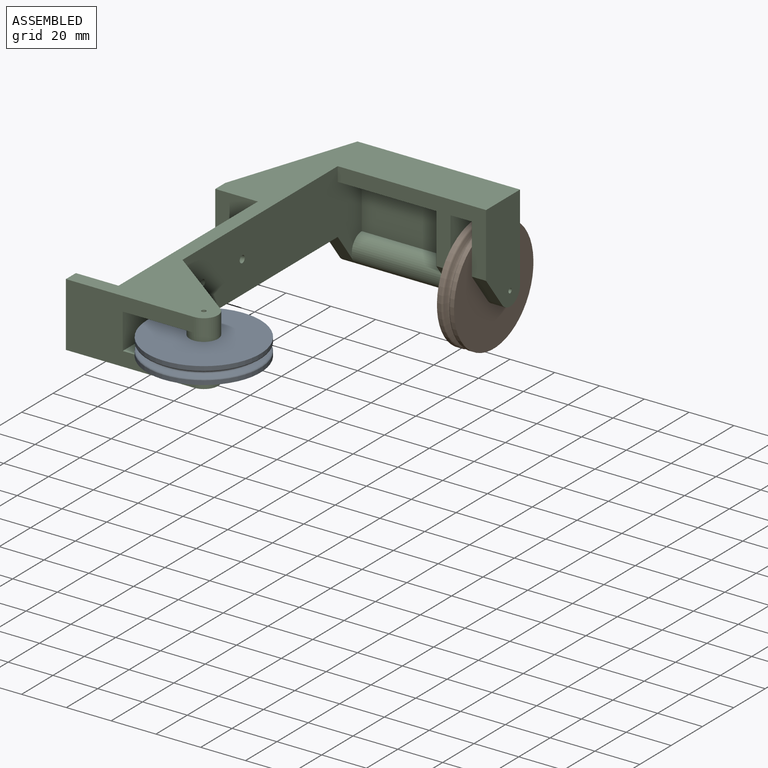
[diagram: assembled view]
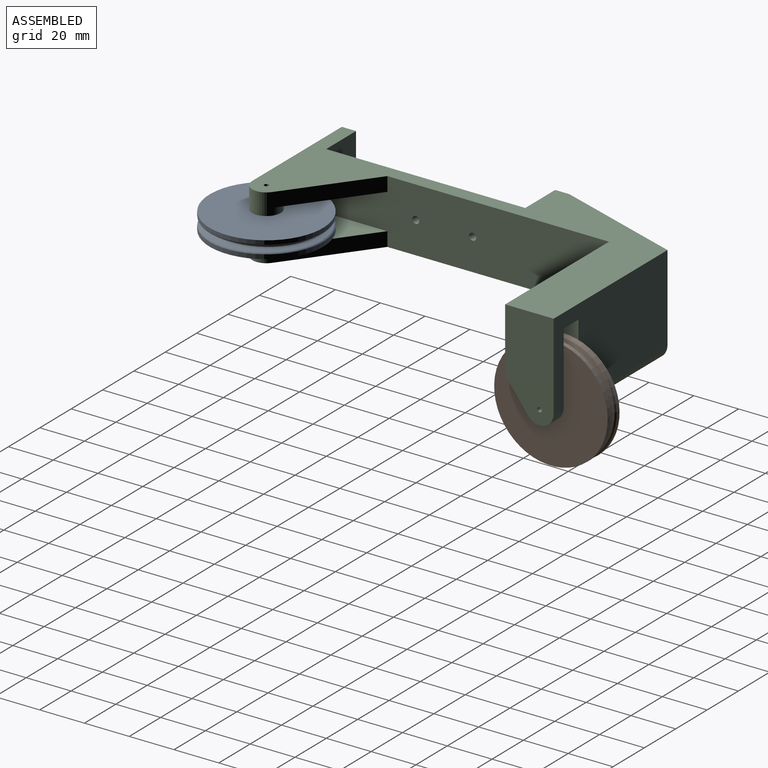
[diagram: assembled view, second angle]
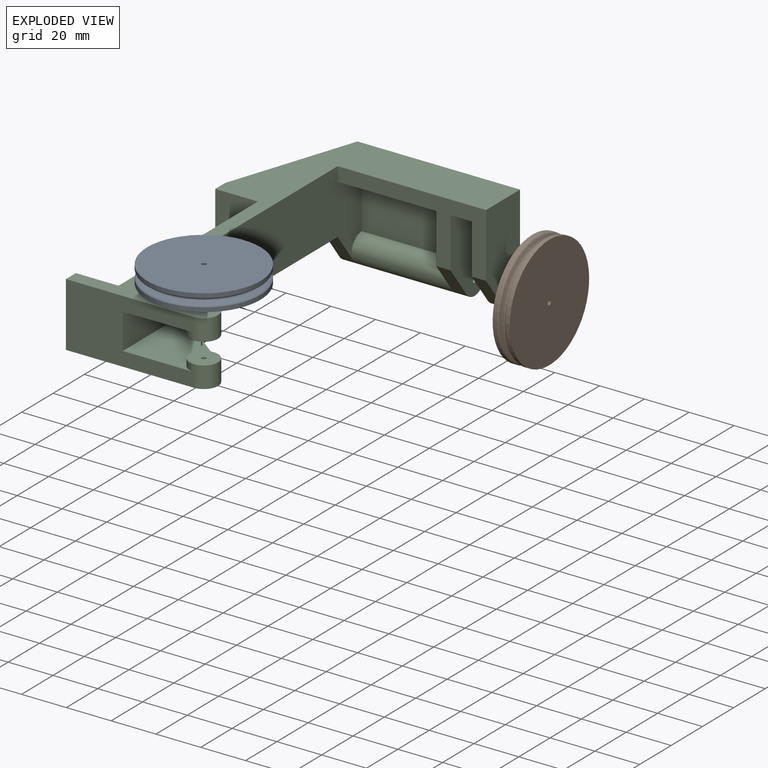
[diagram: exploded view]
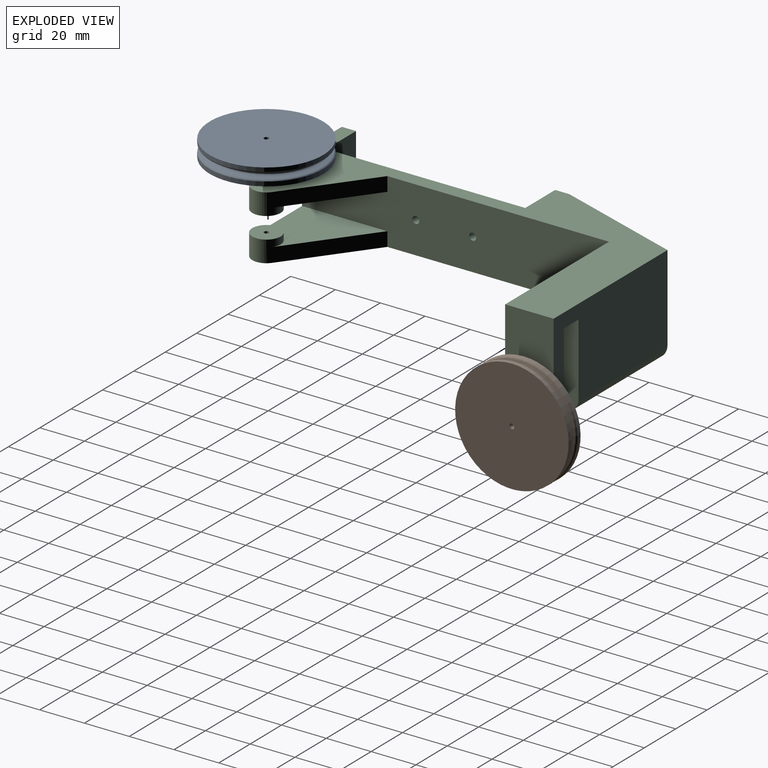
[diagram: exploded view, second angle]
ASSEMBLY  parts=3 mates=3
PART A: 6 faces, bbox 50.7x50.7x7.6 mm
  f0: cylinder r=25.33mm len=50.67mm, axis (0,0,-1), area 286.8mm2, adj f3,f5
  f1: cylinder r=25.33mm len=50.67mm, axis (0,0,-1), area 308.3mm2, adj f4,f5
  f2: cylinder r=1.08mm len=7.62mm, axis (0,0,-1), area 51.7mm2, adj f3,f4
  f3: plane 50.67x50.67mm, normal (0,0,1), area 2012.8mm2, adj f0,f2
  f4: plane 50.67x50.67mm, normal (0,0,-1), area 2012.8mm2, adj f1,f2
  f5: revolved ~50.67x50.67mm, area 2213.4mm2, adj f0,f1
PART B: same geometry as A
PART C: 44 faces, bbox 91.6x158.8x44.8 mm
  f0: plane 57.15x38.42mm, normal (-1,0,0), area 1287.3mm2, adj f1,f3,f25,f26,f39,f40,f41
  f1: plane 19.05x15.88mm, normal (0,1,0), area 302.4mm2, adj f0,f12,f39,f41
  f2: cylinder r=1.02mm len=6.35mm, axis (1,0,0), area 40.5mm2, adj f27,f37
  f3: cylinder r=6.35mm len=56.71mm, axis (1,0,0), area 1518.3mm2, adj f0,f4,f6,f25,f26,f27,f35,f36
  f4: plane 35.88x15.32mm, normal (-1,0,0), area 425.4mm2, adj f3,f5,f29,f35,f36
  f5: plane 44.01x15.32mm, normal (0,0,-1), area 674.1mm2, adj f4,f6,f29,f36
  f6: plane 152.4x42.23mm, normal (1,0,0), area 3842.8mm2, adj f3,f5,f7,f11,f14,f15,f16,f19
  f7: plane 38.1x35.56mm, normal (0,0,-1), area 770.5mm2, adj f6,f11,f21,f22
  f8: plane 88.9x28.58mm, normal (-1,0,0), area 2524.5mm2, adj f9,f13,f14,f15,f42,f43
  f9: plane 28.58x19.05mm, normal (0,1,0), area 544.4mm2, adj f8,f10,f14,f15
  f10: plane 28.58x6.35mm, normal (-1,0,0), area 181.5mm2, adj f9,f11,f14,f15
  f11: plane 57.15x28.58mm, normal (0,-1,0), area 1129mm2, adj f6,f7,f10,f14,f15,f17,f19,f21
  f12: plane 28.58x6.35mm, normal (-1,0,0), area 181.5mm2, adj f1,f13,f14,f15,f38,f40
  f13: plane 28.58x19.05mm, normal (0,-1,0), area 544.4mm2, adj f8,f12,f14,f15
  f14: plane 137.08x63.5mm, normal (0,0,-1), area 2344.2mm2, adj f6,f8,f9,f10,f11,f12,f13,f16
  f15: plane 158.75x91.63mm, normal (0,0,1), area 4123.4mm2, adj f6,f8,f9,f10,f11,f12,f13,f21
  f16: plane 35.56x26.67mm, normal (0.6,0.8,0), area 282.3mm2, adj f6,f14,f17,f19
  f17: cylinder r=6.35mm len=12.7mm, axis (0,0,-1), area 227.4mm2, adj f11,f14,f16,f19,f20
  f18: cylinder r=1.02mm len=9.53mm, axis (0,0,-1), area 60.8mm2, adj f14,f20
  f19: plane 38.1x35.56mm, normal (0,0,1), area 770.5mm2, adj f6,f11,f16,f17
  f20: plane 12.7x12.7mm, normal (0,0,1), area 123.4mm2, adj f17,f18
  f21: cylinder r=6.35mm len=12.7mm, axis (0,0,1), area 227.4mm2, adj f7,f11,f15,f22,f24
  f22: plane 35.56x26.67mm, normal (0.6,0.8,0), area 282.3mm2, adj f6,f7,f15,f21
  f23: cylinder r=1.02mm len=9.53mm, axis (0,0,1), area 60.8mm2, adj f15,f24
  f24: plane 12.7x12.7mm, normal (0,0,-1), area 123.4mm2, adj f21,f23
  f25: plane 72.58x38.42mm, normal (0,1,0), area 2482.9mm2, adj f0,f3,f15,f27,f28,f31,f33,f34
  f26: plane 13.65x10.24mm, normal (0,-0.8,-0.6), area 108.4mm2, adj f0,f3,f6,f14
  f27: plane 38.42x21.67mm, normal (1,0,0), area 720.8mm2, adj f2,f3,f25,f28,f29,f35
  f28: plane 21.67x9.53mm, normal (0,0,-1), area 206.4mm2, adj f25,f27,f29,f34
  f29: plane 66.23x28.58mm, normal (0,-1,0), area 702.8mm2, adj f4,f5,f6,f15,f27,f28,f30,f33
  f30: plane 13.65x10.24mm, normal (0,-0.8,-0.6), area 108.4mm2, adj f29,f31,f33,f34
  f31: cylinder r=6.35mm len=11.43mm, axis (-1,0,0), area 100.7mm2, adj f25,f30,f33,f34
  f32: cylinder r=1.02mm len=6.35mm, axis (-1,0,0), area 40.5mm2, adj f33,f34
  f33: plane 44.77x21.67mm, normal (1,0,0), area 858.4mm2, adj f15,f25,f29,f30,f31,f32
  f34: plane 38.42x21.67mm, normal (-1,0,0), area 720.8mm2, adj f25,f28,f29,f30,f31,f32
  f35: plane 13.65x10.24mm, normal (0,-0.8,-0.6), area 108.4mm2, adj f3,f4,f27,f29
  f36: plane 44.01x25.72mm, normal (0,-1,0), area 1131.7mm2, adj f3,f4,f5,f6
  f37: plane 2.03x2.03mm, normal (1,0,0), area 3.2mm2, adj f2
  f38: plane 57.15x19.05mm, normal (-0.95,0.32,0), area 382.5mm2, adj f12,f15,f25,f39
  f39: plane 57.15x19.05mm, normal (0,0,-1), area 544.4mm2, adj f0,f1,f38
  f40: plane 35.48x19.05mm, normal (-0.88,0.47,0), area 255.7mm2, adj f0,f12,f14,f41
  f41: plane 35.48x19.05mm, normal (0,0,1), area 338mm2, adj f0,f1,f40
  f42: cylinder r=1.59mm len=6.35mm, axis (1,0,0), area 63.3mm2, adj f6,f8
  f43: cylinder r=1.59mm len=6.35mm, axis (1,0,0), area 63.3mm2, adj f6,f8
PLACE A rot(axis=(0,0,1),180deg) t=(33.63,-43.22,-4.5)mm
PLACE B rot(axis=(-0.71,0,-0.71),180deg) t=(53.19,102.83,-24.82)mm
PLACE C t=(-4.47,1.23,-0.69)mm
MATE cylindrical A.f0 <-> C.f17  axis (0,0,1) through (33.63,-43.22,3.12)mm
MATE planar A.f0 <-> C.f17  axis (0,0,1) through (33.63,-43.22,3.12)mm
MATE revolute B.f0 <-> C.f2  axis (-1,0,0) through (53.19,102.83,-24.82)mm
